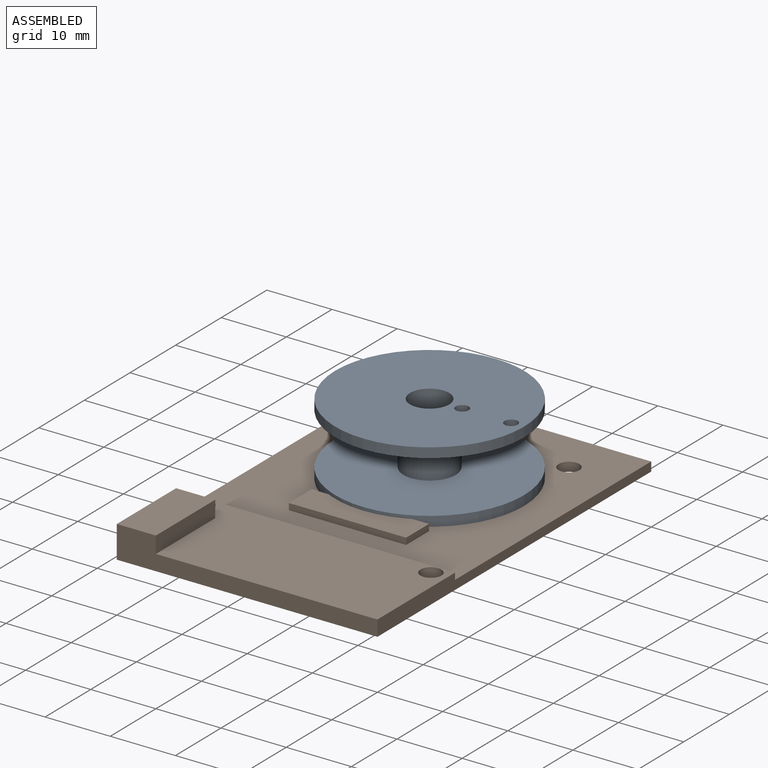
[diagram: assembled view]
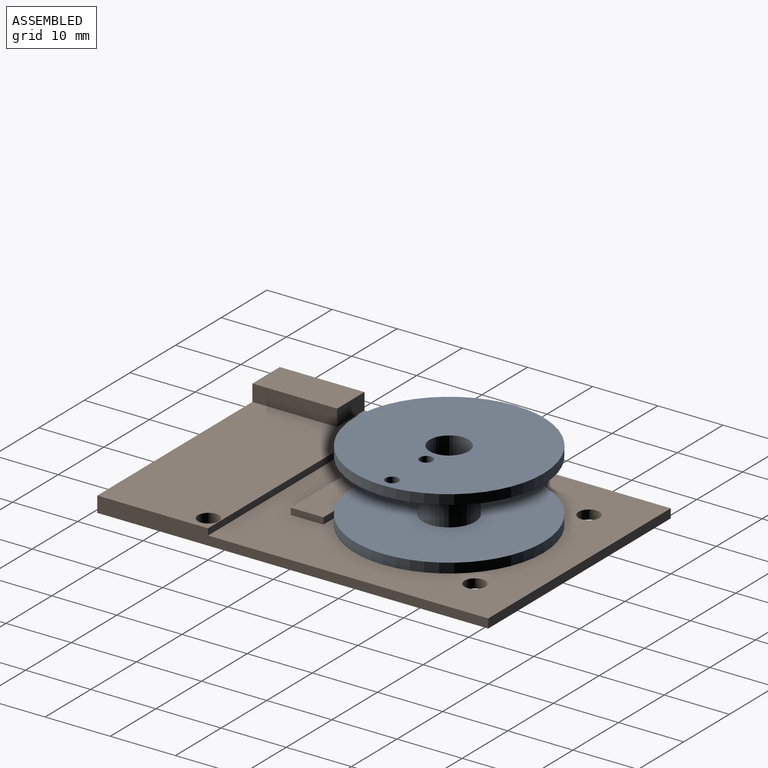
[diagram: assembled view, second angle]
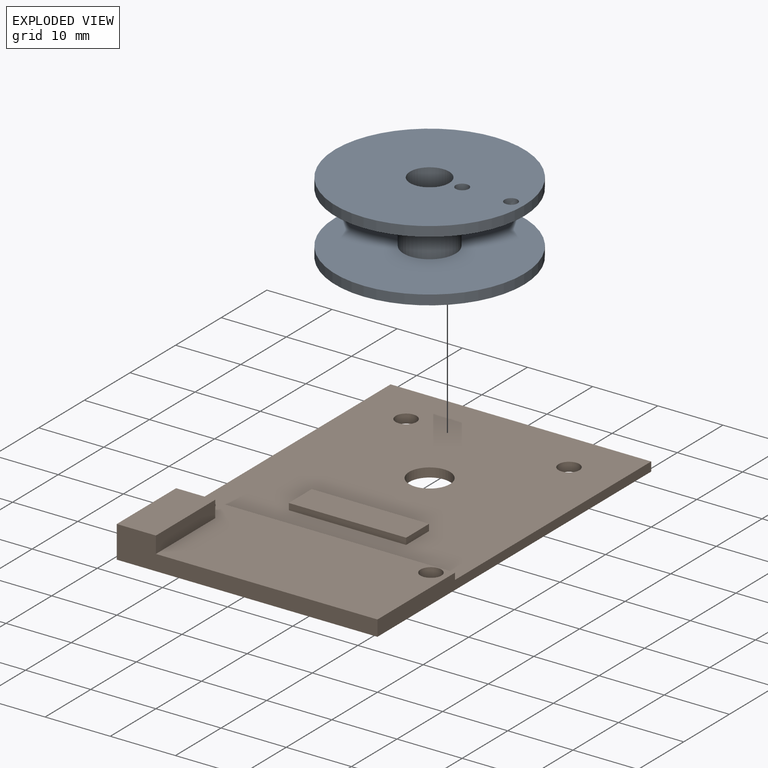
[diagram: exploded view]
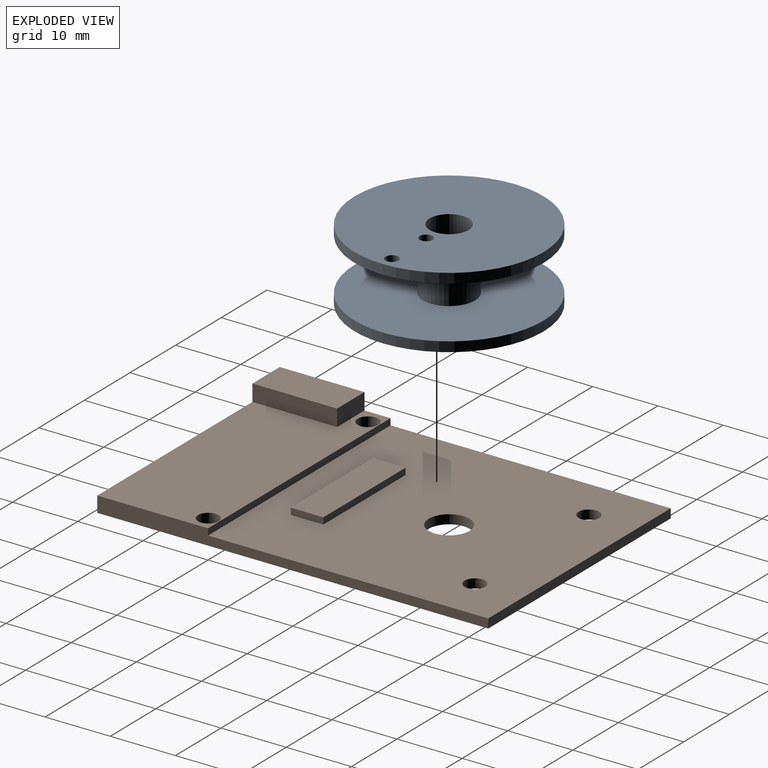
[diagram: exploded view, second angle]
ASSEMBLY  parts=2 mates=2
PART A: 10 faces, bbox 29x29x11 mm
  f0: plane 29x29mm, normal (0,0,1), area 626mm2, adj f6,f7,f8,f9
  f1: plane 29x29mm, normal (0,0,-1), area 632.2mm2, adj f2,f7
  f2: cylinder r=14.5mm len=29mm, axis (0,0,-1), area 136.7mm2, adj f1,f3
  f3: plane 29x29mm, normal (0,0,1), area 610.3mm2, adj f2,f4
  f4: cylinder r=4mm len=8mm, axis (0,0,-1), area 201.1mm2, adj f3,f5
  f5: plane 29x29mm, normal (0,0,-1), area 604mm2, adj f4,f6,f8,f9
  f6: cylinder r=14.5mm len=29mm, axis (0,0,-1), area 136.7mm2, adj f0,f5
  f7: cylinder r=3mm len=11mm, axis (0,0,1), area 207.3mm2, adj f0,f1
  f8: cylinder r=1mm len=2mm, axis (0,0,1), area 9.4mm2, adj f0,f5
  f9: cylinder r=1mm len=2mm, axis (0,0,1), area 9.4mm2, adj f0,f5
PART B: 21 faces, bbox 40x60x5 mm
  f0: plane 40x17mm, normal (0,0,1), area 585.9mm2, adj f2,f3,f5,f12,f13,f14,f18,f19
  f1: plane 43x40mm, normal (0,0,1), area 1582.7mm2, adj f3,f4,f5,f7,f8,f9,f10,f12
  f2: plane 40x4.95mm, normal (0,-1,0), area 111.3mm2, adj f0,f3,f5,f6,f13,f15
  f3: plane 60x2.4mm, normal (1,0,0), area 101mm2, adj f0,f1,f2,f4,f6,f12
  f4: plane 40x1.4mm, normal (0,1,0), area 56mm2, adj f1,f3,f5,f6
  f5: plane 60x4.95mm, normal (-1,0,0), area 134.1mm2, adj f0,f1,f2,f4,f6,f12,f14,f15
  f6: plane 60x40mm, normal (0,0,-1), area 2336.7mm2, adj f2,f3,f4,f5,f16,f17,f18,f19
  f7: plane 18x1mm, normal (0,1,0), area 18mm2, adj f1,f8,f10,f11
  f8: plane 5x1mm, normal (-1,0,0), area 5mm2, adj f1,f7,f9,f11
  f9: plane 18x1mm, normal (0,-1,0), area 18mm2, adj f1,f8,f10,f11
  f10: plane 5x1mm, normal (1,0,0), area 5mm2, adj f1,f7,f9,f11
  f11: plane 18x5mm, normal (0,0,1), area 90mm2, adj f7,f8,f9,f10
  f12: plane 40x1mm, normal (0,1,0), area 40mm2, adj f0,f1,f3,f5
  f13: plane 13x2.55mm, normal (1,0,0), area 33.1mm2, adj f0,f2,f14,f15
  f14: plane 6x2.55mm, normal (0,1,0), area 15.3mm2, adj f0,f5,f13,f15
  f15: plane 13x6mm, normal (0,0,1), area 78mm2, adj f2,f5,f13,f14
  f16: cylinder r=1.6mm len=3.2mm, axis (0,0,-1), area 14.1mm2, adj f1,f6
  f17: cylinder r=1.6mm len=3.2mm, axis (0,0,-1), area 14.1mm2, adj f1,f6
  f18: cylinder r=1.6mm len=3.2mm, axis (0,0,-1), area 24.1mm2, adj f0,f6
  f19: cylinder r=1.6mm len=3.2mm, axis (0,0,-1), area 24.1mm2, adj f0,f6
  f20: cylinder r=3.15mm len=6.3mm, axis (0,0,-1), area 27.7mm2, adj f1,f6
PLACE A t=(0,10,11.55)mm
PLACE B t=(0,0,6.05)mm
MATE fastened B.f20 <-> A.f2  axis (0,0,1) through (0,10,6.05)mm
MATE planar A.f2 <-> B.f20  axis (0,0,-1) through (0,10,6.05)mm
